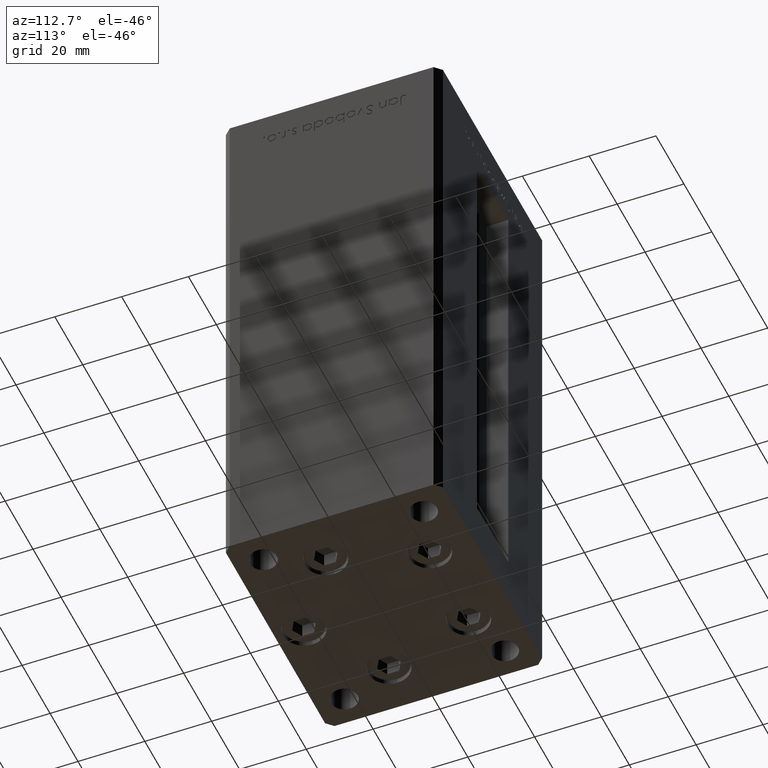
[diagram: clean part render]
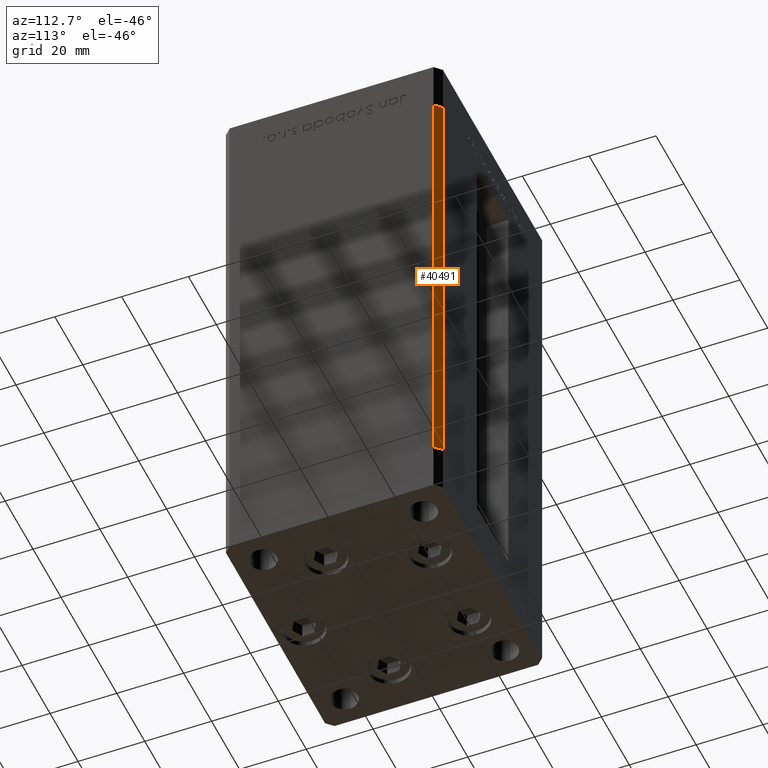
[diagram: same view with one face highlighted and labeled with its STEP entity id]
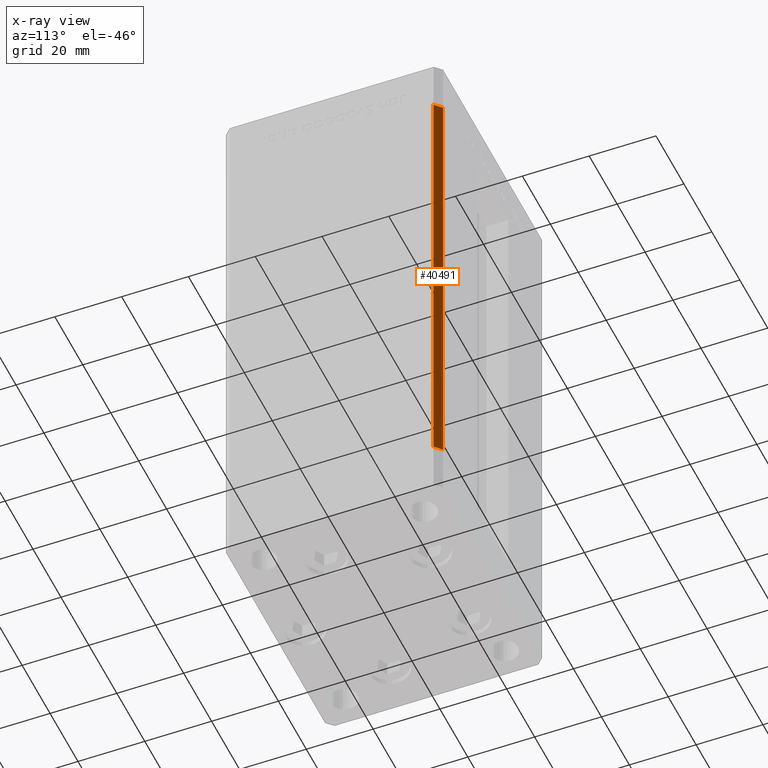
[diagram: x-ray of the same camera — body ghosted, the highlighted face saturated]
A machine part, auxiliary view. The second image highlights one B-rep face of the part: STEP entity #40491.
The next image is the same camera in x-ray: the body ghosted, the highlighted face saturated — about 0% of this face is hidden behind the body in this view.
In plain terms, the highlighted planar face has unit normal (0.7071, 0.7071, 0).
Its self-contained STEP definition (entity closure, byte-faithful):
#940 = EDGE_CURVE ( 'NONE', #20468, #37084, #12243, .T. ) ;
#8123 = VERTEX_POINT ( 'NONE', #32820 ) ;
#10624 = AXIS2_PLACEMENT_3D ( 'NONE', #15656, #20396, #11413 ) ;
#10728 = DIRECTION ( 'NONE',  ( -0.000000000000000000, -0.000000000000000000, -1.000000000000000000 ) ) ;
#10982 = ORIENTED_EDGE ( 'NONE', *, *, #35899, .T. ) ;
#11413 = DIRECTION ( 'NONE',  ( -0.7071067811865500152, 0.7071067811865451302, 0.000000000000000000 ) ) ;
#12243 = LINE ( 'NONE', #28600, #26101 ) ;
#13939 = LINE ( 'NONE', #17908, #25609 ) ;
#15656 = CARTESIAN_POINT ( 'NONE',  ( 35.50000000000000000, 32.49999999999999289, 136.0000000000000000 ) ) ;
#16646 = VECTOR ( 'NONE', #17526, 1000.000000000000000 ) ;
#17526 = DIRECTION ( 'NONE',  ( -0.000000000000000000, -0.000000000000000000, -1.000000000000000000 ) ) ;
#17908 = CARTESIAN_POINT ( 'NONE',  ( 37.50000000000000711, 30.50000000000000000, 136.0000000000000000 ) ) ;
#20294 = ORIENTED_EDGE ( 'NONE', *, *, #33388, .T. ) ;
#20396 = DIRECTION ( 'NONE',  ( 0.7071067811865451302, 0.7071067811865500152, -0.000000000000000000 ) ) ;
#20468 = VERTEX_POINT ( 'NONE', #33368 ) ;
#22761 = ORIENTED_EDGE ( 'NONE', *, *, #47771, .F. ) ;
#23826 = FACE_OUTER_BOUND ( 'NONE', #29403, .T. ) ;
#24359 = VERTEX_POINT ( 'NONE', #31392 ) ;
#24489 = CARTESIAN_POINT ( 'NONE',  ( 37.50000000000000711, 30.50000000000000000, 0.000000000000000000 ) ) ;
#24843 = VECTOR ( 'NONE', #45596, 1000.000000000000114 ) ;
#25281 = CARTESIAN_POINT ( 'NONE',  ( 35.50000000000000000, 32.49999999999999289, 136.0000000000000000 ) ) ;
#25609 = VECTOR ( 'NONE', #10728, 1000.000000000000000 ) ;
#26101 = VECTOR ( 'NONE', #31768, 1000.000000000000114 ) ;
#28600 = CARTESIAN_POINT ( 'NONE',  ( 35.50000000000000000, 32.49999999999999289, 0.000000000000000000 ) ) ;
#29403 = EDGE_LOOP ( 'NONE', ( #50242, #22761, #10982, #20294 ) ) ;
#31392 = CARTESIAN_POINT ( 'NONE',  ( 37.50000000000000711, 30.50000000000000000, 136.0000000000000000 ) ) ;
#31768 = DIRECTION ( 'NONE',  ( 0.7071067811865500152, -0.7071067811865451302, 0.000000000000000000 ) ) ;
#32820 = CARTESIAN_POINT ( 'NONE',  ( 35.50000000000000000, 32.49999999999999289, 136.0000000000000000 ) ) ;
#33368 = CARTESIAN_POINT ( 'NONE',  ( 35.50000000000000000, 32.49999999999999289, 0.000000000000000000 ) ) ;
#33388 = EDGE_CURVE ( 'NONE', #24359, #37084, #13939, .T. ) ;
#35899 = EDGE_CURVE ( 'NONE', #8123, #24359, #36615, .T. ) ;
#36615 = LINE ( 'NONE', #25281, #24843 ) ;
#37084 = VERTEX_POINT ( 'NONE', #24489 ) ;
#40491 = ADVANCED_FACE ( 'NONE', ( #23826 ), #51774, .T. ) ;
#41009 = LINE ( 'NONE', #49697, #16646 ) ;
#45596 = DIRECTION ( 'NONE',  ( 0.7071067811865500152, -0.7071067811865451302, 0.000000000000000000 ) ) ;
#47771 = EDGE_CURVE ( 'NONE', #8123, #20468, #41009, .T. ) ;
#49697 = CARTESIAN_POINT ( 'NONE',  ( 35.50000000000000000, 32.49999999999999289, 136.0000000000000000 ) ) ;
#50242 = ORIENTED_EDGE ( 'NONE', *, *, #940, .F. ) ;
#51774 = PLANE ( 'NONE',  #10624 ) ;